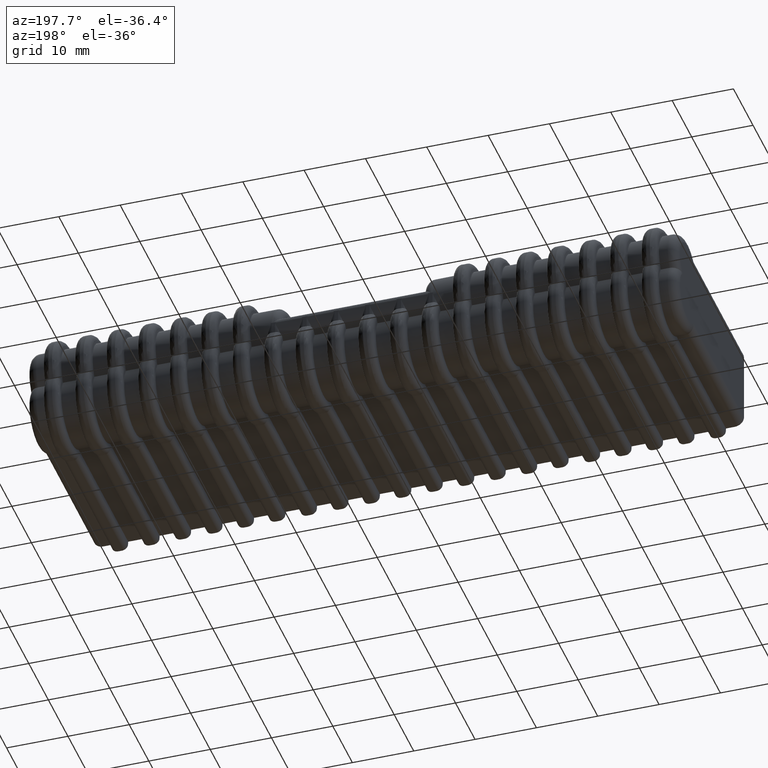
[diagram: clean part render]
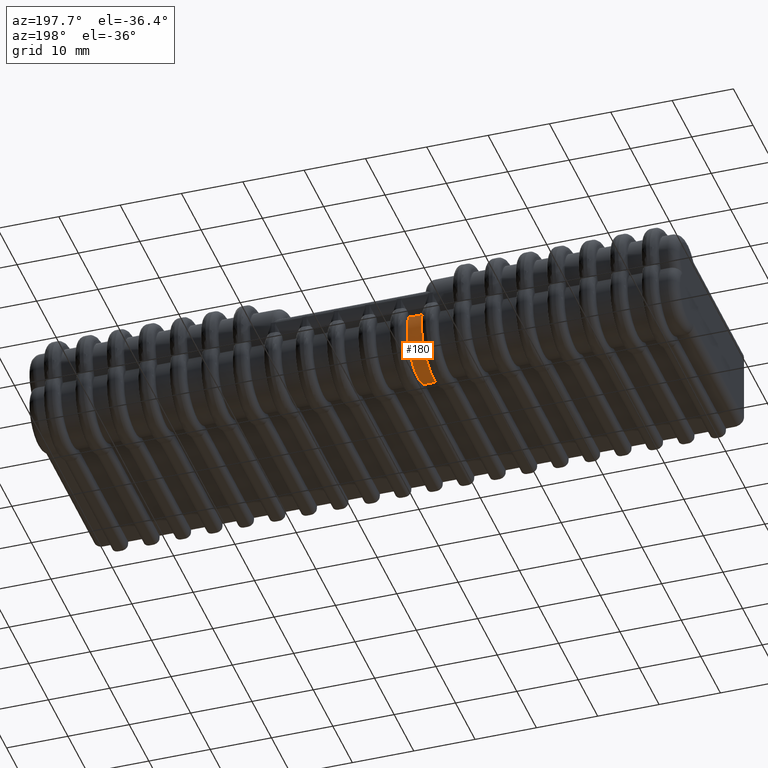
[diagram: same view with one face highlighted and labeled with its STEP entity id]
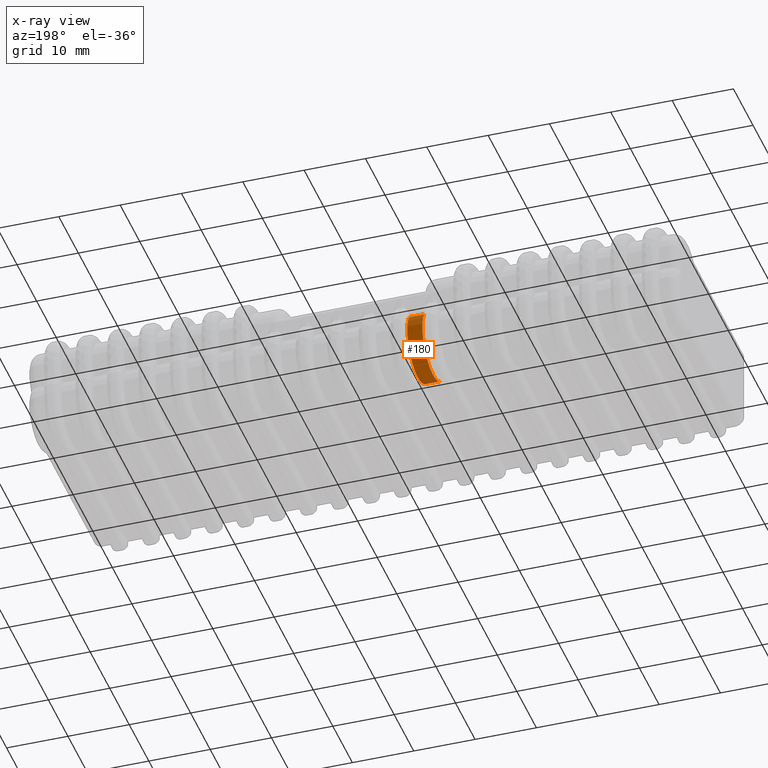
[diagram: x-ray of the same camera — body ghosted, the highlighted face saturated]
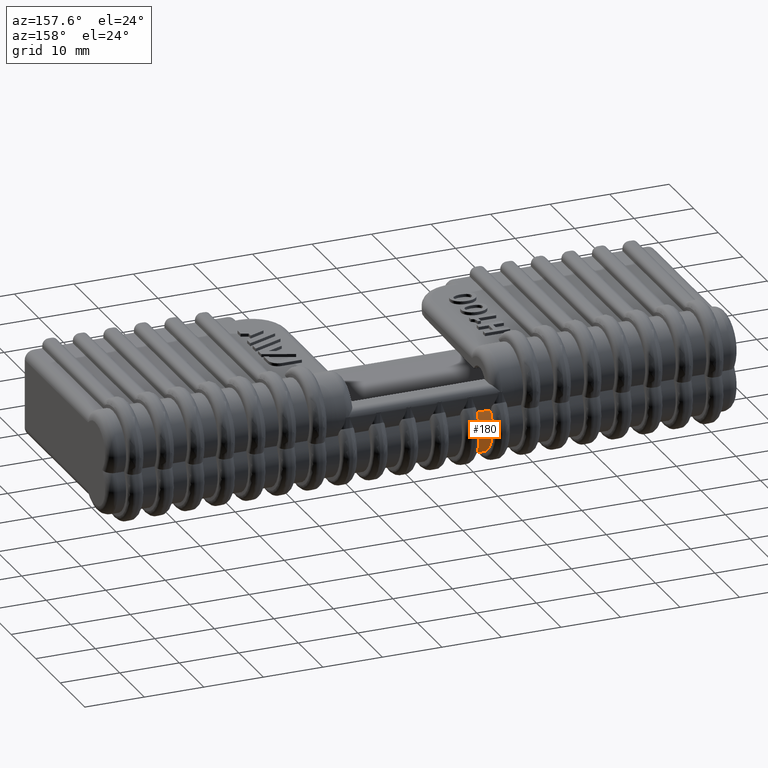
[diagram: same view with one face highlighted and labeled with its STEP entity id]
A machine part, auxiliary view. The second image highlights one B-rep face of the part: STEP entity #180.
The next image is the same camera in x-ray: the body ghosted, the highlighted face saturated — about 0% of this face is hidden behind the body in this view.
A second angle (auxiliary view) of the same face is appended — the face is thin or edge-on in the first view.
In plain terms, the highlighted cylindrical surface (edge-blend (fillet) strip) has radius 5.5 mm, axis along (1, 0, 0).
Its self-contained STEP definition (entity closure, byte-faithful):
#180 = ADVANCED_FACE( '', ( #831 ), #832, .T. );
#831 = FACE_OUTER_BOUND( '', #1936, .T. );
#832 = CYLINDRICAL_SURFACE( '', #1937, 5.50000000000001 );
#1936 = EDGE_LOOP( '', ( #3662, #3663, #3664, #3665, #3666 ) );
#1937 = AXIS2_PLACEMENT_3D( '', #3667, #3668, #3669 );
#3662 = ORIENTED_EDGE( '', *, *, #7898, .F. );
#3663 = ORIENTED_EDGE( '', *, *, #7899, .F. );
#3664 = ORIENTED_EDGE( '', *, *, #7900, .F. );
#3665 = ORIENTED_EDGE( '', *, *, #7884, .T. );
#3666 = ORIENTED_EDGE( '', *, *, #7901, .T. );
#3667 = CARTESIAN_POINT( '', ( 100.000000000000, 28.7272077938642, -2.97720779386421 ) );
#3668 = DIRECTION( '', ( 1.00000000000000, 3.31166777813623E-032, 1.80284751248131E-016 ) );
#3669 = DIRECTION( '', ( -1.80284751248131E-016, 1.83690953073357E-016, 1.00000000000000 ) );
#7884 = EDGE_CURVE( '', #9679, #9677, #9680, .T. );
#7898 = EDGE_CURVE( '', #9705, #9706, #9707, .T. );
#7899 = EDGE_CURVE( '', #9708, #9705, #9709, .T. );
#7900 = EDGE_CURVE( '', #9679, #9708, #9710, .F. );
#7901 = EDGE_CURVE( '', #9677, #9706, #9711, .T. );
#9677 = VERTEX_POINT( '', #13124 );
#9679 = VERTEX_POINT( '', #13129 );
#9680 = LINE( '', #13130, #13131 );
#9705 = VERTEX_POINT( '', #13199 );
#9706 = VERTEX_POINT( '', #13200 );
#9707 = LINE( '', #13201, #13202 );
#9708 = VERTEX_POINT( '', #13203 );
#9709 = CIRCLE( '', #13204, 5.50000000000000 );
#9710 = ELLIPSE( '', #13205, 5.50754790298857, 5.50000000000001 );
#9711 = CIRCLE( '', #13206, 5.50000000000001 );
#13124 = CARTESIAN_POINT( '', ( -11.4913883310754, 25.2640810616776, -7.25000000000000 ) );
#13129 = CARTESIAN_POINT( '', ( -9.02361166892455, 25.2640810616776, -7.24999999999999 ) );
#13130 = CARTESIAN_POINT( '', ( 100.000000000000, 25.2640810616776, -7.24999999999999 ) );
#13131 = VECTOR( '', #17987, 1000.00000000000 );
#13199 = CARTESIAN_POINT( '', ( -9.01861166892457, 33.3517330400007, -8.67361737988404E-015 ) );
#13200 = CARTESIAN_POINT( '', ( -11.4913883310754, 33.3517330400008, -8.67361737988404E-015 ) );
#13201 = CARTESIAN_POINT( '', ( -1.19315137437793E-014, 33.3517330400007, 6.93889390390723E-015 ) );
#13202 = VECTOR( '', #17996, 1000.00000000000 );
#13203 = CARTESIAN_POINT( '', ( -9.01861166892457, 25.3852252688469, -7.34540568343826 ) );
#13204 = AXIS2_PLACEMENT_3D( '', #17997, #17998, #17999 );
#13205 = AXIS2_PLACEMENT_3D( '', #18000, #18001, #18002 );
#13206 = AXIS2_PLACEMENT_3D( '', #18003, #18004, #18005 );
#17987 = DIRECTION( '', ( -1.00000000000000, -3.31166777813623E-032, -1.80284751248131E-016 ) );
#17996 = DIRECTION( '', ( -1.00000000000000, 1.19434940237103E-016, -1.80284751248131E-016 ) );
#17997 = CARTESIAN_POINT( '', ( -9.01861166892457, 28.7272077938642, -2.97720779386422 ) );
#17998 = DIRECTION( '', ( 1.00000000000000, 3.31166777813622E-032, 1.80284751248131E-016 ) );
#17999 = DIRECTION( '', ( 1.80284751248131E-016, -1.83690953073357E-016, -1.00000000000000 ) );
#18000 = CARTESIAN_POINT( '', ( -9.24753921978602, 28.7272077938642, -2.97720779386423 ) );
#18001 = DIRECTION( '', ( -0.998629534754574, -9.61364168227182E-018, -0.0523359562429437 ) );
#18002 = DIRECTION( '', ( -0.0523359562429437, 1.83439211006270E-016, 0.998629534754574 ) );
#18003 = CARTESIAN_POINT( '', ( -11.4913883310754, 28.7272077938642, -2.97720779386422 ) );
#18004 = DIRECTION( '', ( 1.00000000000000, 3.31166777813623E-032, 1.80284751248131E-016 ) );
#18005 = DIRECTION( '', ( 1.80284751248131E-016, -1.83690953073357E-016, -1.00000000000000 ) );